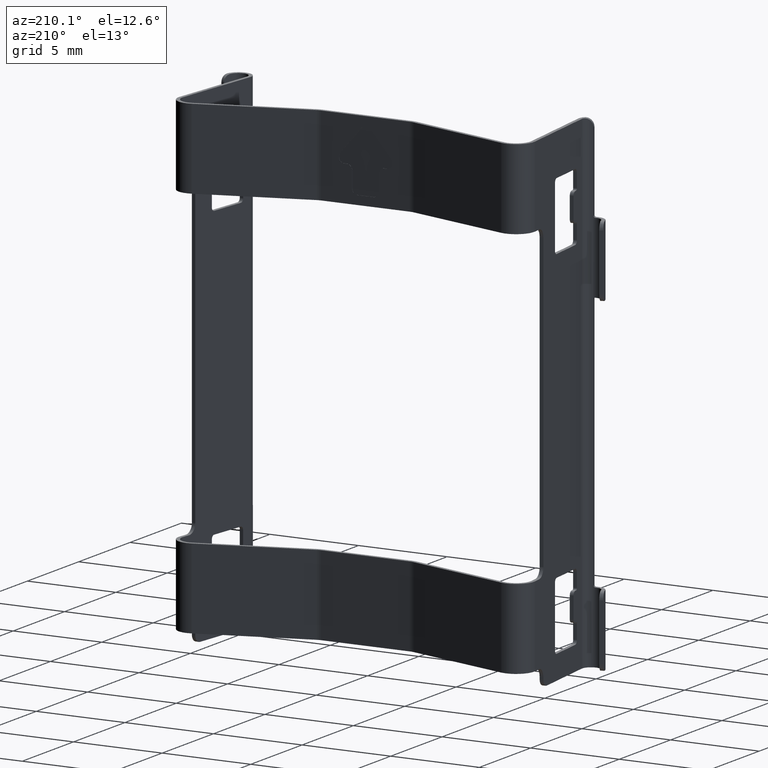
[diagram: clean part render]
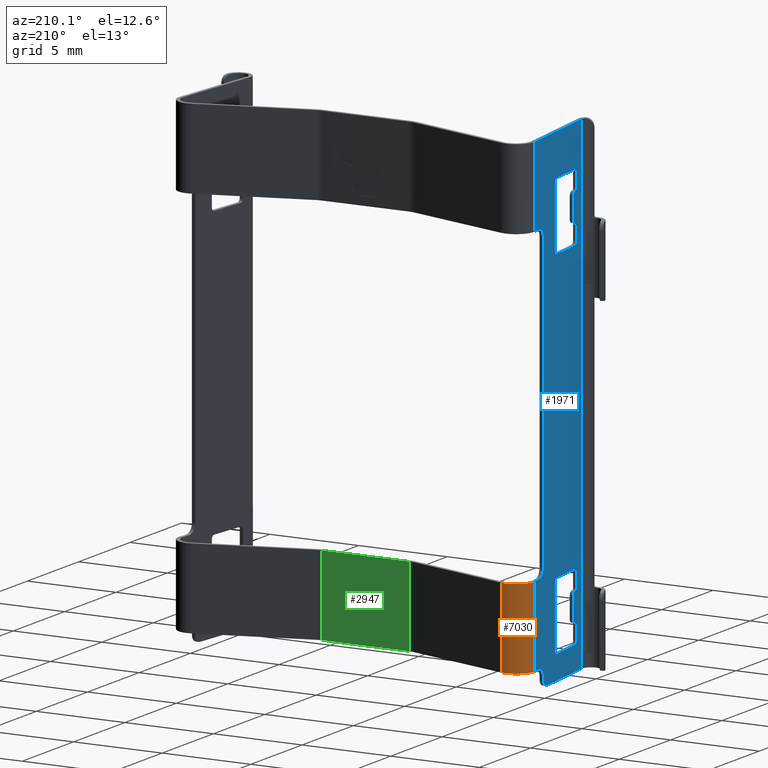
[diagram: same view with three faces highlighted in distinct colors, each labeled with its STEP entity id]
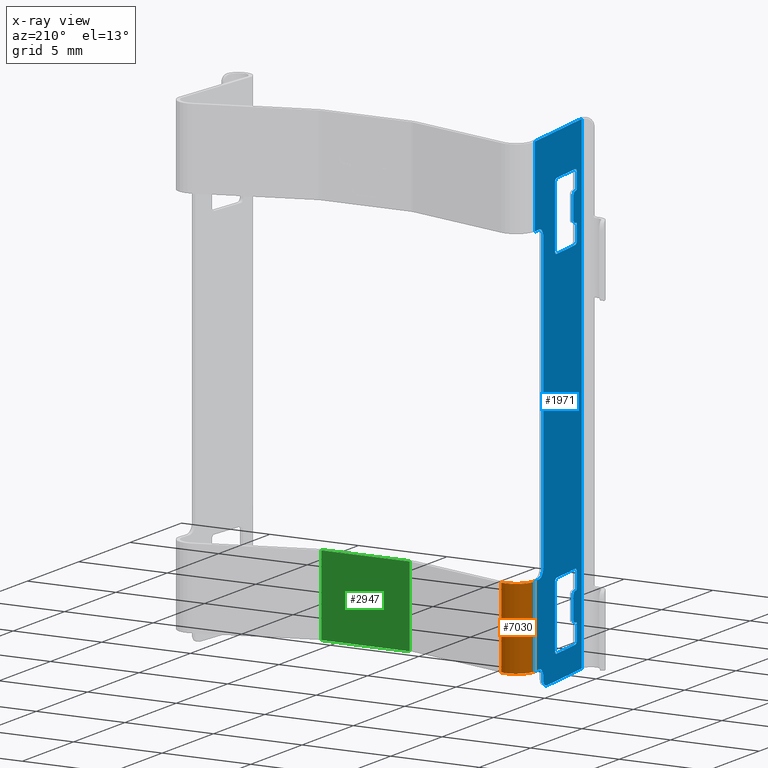
[diagram: x-ray of the same camera — body ghosted, the three highlighted faces saturated]
A machine part, auxiliary view with three faces highlighted in distinct colors.
The next image is the same camera in x-ray (body ghosted, the three faces saturated) — at least one of them is partly hidden behind the body in this view.
Their STEP definitions:

[orange] entity #7030 — the highlighted cylindrical surface (edge-blend (fillet) strip) has radius 1 mm, axis along (0, 0, 1).
#315 = CARTESIAN_POINT ( 'NONE',  ( -9.025000000008329692, 1.099999999455905986, -27.50000000000000000 ) ) ;
#327 = LINE ( 'NONE', #5213, #4170 ) ;
#435 = DIRECTION ( 'NONE',  ( 1.000000000000000000, 0.0000000000000000000, 0.0000000000000000000 ) ) ;
#462 = EDGE_LOOP ( 'NONE', ( #8077, #1681, #4314, #1976 ) ) ;
#1239 = DIRECTION ( 'NONE',  ( 0.0000000000000000000, 0.0000000000000000000, -1.000000000000000000 ) ) ;
#1681 = ORIENTED_EDGE ( 'NONE', *, *, #1715, .T. ) ;
#1715 = EDGE_CURVE ( 'NONE', #10631, #4213, #327, .T. ) ;
#1847 = CARTESIAN_POINT ( 'NONE',  ( -10.01981317973310048, 0.9982810855515210635, -22.00000000000000000 ) ) ;
#1976 = ORIENTED_EDGE ( 'NONE', *, *, #1982, .F. ) ;
#1982 = EDGE_CURVE ( 'NONE', #2747, #6828, #2173, .T. ) ;
#2173 = LINE ( 'NONE', #9080, #4026 ) ;
#2210 = CARTESIAN_POINT ( 'NONE',  ( -10.01981317973310048, 0.9982810855515210635, -26.50000000000000000 ) ) ;
#2699 = CYLINDRICAL_SURFACE ( 'NONE', #4912, 0.9999999999999991118 ) ;
#2747 = VERTEX_POINT ( 'NONE', #5402 ) ;
#3188 = DIRECTION ( 'NONE',  ( 0.0000000000000000000, 0.0000000000000000000, 1.000000000000000000 ) ) ;
#3218 = FACE_OUTER_BOUND ( 'NONE', #462, .T. ) ;
#4026 = VECTOR ( 'NONE', #3188, 1000.000000000000000 ) ;
#4170 = VECTOR ( 'NONE', #4471, 1000.000000000000000 ) ;
#4213 = VERTEX_POINT ( 'NONE', #1847 ) ;
#4314 = ORIENTED_EDGE ( 'NONE', *, *, #7561, .T. ) ;
#4444 = CIRCLE ( 'NONE', #9383, 0.9999999999999991118 ) ;
#4471 = DIRECTION ( 'NONE',  ( 0.0000000000000000000, 0.0000000000000000000, 1.000000000000000000 ) ) ;
#4912 = AXIS2_PLACEMENT_3D ( 'NONE', #315, #7149, #435 ) ;
#5057 = AXIS2_PLACEMENT_3D ( 'NONE', #5435, #1239, #10629 ) ;
#5213 = CARTESIAN_POINT ( 'NONE',  ( -10.01981317973310048, 0.9982810855515200643, -27.50000000000000000 ) ) ;
#5402 = CARTESIAN_POINT ( 'NONE',  ( -8.734473304504179580, 2.056866886331734978, -26.50000000000000000 ) ) ;
#5435 = CARTESIAN_POINT ( 'NONE',  ( -9.025000000008329692, 1.099999999455905986, -22.00000000000000000 ) ) ;
#6134 = CARTESIAN_POINT ( 'NONE',  ( -8.734473304504179580, 2.056866886331734978, -22.00000000000000000 ) ) ;
#6698 = DIRECTION ( 'NONE',  ( 1.000000000000000000, 0.0000000000000000000, 0.0000000000000000000 ) ) ;
#6828 = VERTEX_POINT ( 'NONE', #6134 ) ;
#7002 = CIRCLE ( 'NONE', #5057, 0.9999999999999991118 ) ;
#7030 = ADVANCED_FACE ( 'NONE', ( #3218 ), #2699, .T. ) ;
#7149 = DIRECTION ( 'NONE',  ( 0.0000000000000000000, 0.0000000000000000000, 1.000000000000000000 ) ) ;
#7386 = EDGE_CURVE ( 'NONE', #10631, #2747, #4444, .T. ) ;
#7561 = EDGE_CURVE ( 'NONE', #4213, #6828, #7002, .T. ) ;
#8077 = ORIENTED_EDGE ( 'NONE', *, *, #7386, .F. ) ;
#9080 = CARTESIAN_POINT ( 'NONE',  ( -8.734473304504179580, 2.056866886331734978, -27.50000000000000000 ) ) ;
#9383 = AXIS2_PLACEMENT_3D ( 'NONE', #10936, #10198, #6698 ) ;
#10198 = DIRECTION ( 'NONE',  ( 0.0000000000000000000, 0.0000000000000000000, -1.000000000000000000 ) ) ;
#10629 = DIRECTION ( 'NONE',  ( 1.000000000000000000, 0.0000000000000000000, 0.0000000000000000000 ) ) ;
#10631 = VERTEX_POINT ( 'NONE', #2210 ) ;
#10936 = CARTESIAN_POINT ( 'NONE',  ( -9.025000000008329692, 1.099999999455905986, -26.50000000000000000 ) ) ;

[blue] entity #1971 — the highlighted planar face has unit normal (-0.9948, -0.1017, 0).
#8 = AXIS2_PLACEMENT_3D ( 'NONE', #5692, #3154, #1520 ) ;
#68 = VERTEX_POINT ( 'NONE', #10495 ) ;
#76 = ORIENTED_EDGE ( 'NONE', *, *, #6745, .T. ) ;
#106 = VERTEX_POINT ( 'NONE', #9983 ) ;
#113 = EDGE_CURVE ( 'NONE', #3798, #8323, #6130, .T. ) ;
#147 = CARTESIAN_POINT ( 'NONE',  ( -10.17270023281965940, 2.493519774029495206, -26.50000000000000000 ) ) ;
#182 = CIRCLE ( 'NONE', #1887, 0.2000000000000002331 ) ;
#189 = ORIENTED_EDGE ( 'NONE', *, *, #4750, .F. ) ;
#192 = DIRECTION ( 'NONE',  ( 0.9948131797247722341, 0.1017189139043870316, 2.927413515468605853E-30 ) ) ;
#221 = ORIENTED_EDGE ( 'NONE', *, *, #7486, .T. ) ;
#226 = VECTOR ( 'NONE', #4983, 1000.000000000000114 ) ;
#227 = ORIENTED_EDGE ( 'NONE', *, *, #10497, .T. ) ;
#239 = CARTESIAN_POINT ( 'NONE',  ( -9.532118734268060223, -3.771381147405845180, -23.65000000000000213 ) ) ;
#263 = CARTESIAN_POINT ( 'NONE',  ( -9.511774951487179663, -3.970343783350804845, -22.55000000000000071 ) ) ;
#270 = DIRECTION ( 'NONE',  ( 0.1017189139043860185, -0.9948131797247722341, 0.0000000000000000000 ) ) ;
#285 = AXIS2_PLACEMENT_3D ( 'NONE', #6759, #6725, #2521 ) ;
#327 = LINE ( 'NONE', #5213, #4170 ) ;
#393 = DIRECTION ( 'NONE',  ( 0.9948131797247722341, 0.1017189139043868235, 0.0000000000000000000 ) ) ;
#451 = VECTOR ( 'NONE', #6370, 1000.000000000000000 ) ;
#534 = CARTESIAN_POINT ( 'NONE',  ( -9.755900344857700190, -1.582792152011350151, -22.55000000000000071 ) ) ;
#540 = DIRECTION ( 'NONE',  ( -0.1017189139043866153, 0.9948131797247722341, 0.0000000000000000000 ) ) ;
#544 = CARTESIAN_POINT ( 'NONE',  ( -9.552462517048928348, -3.572418511460889956, -24.85000000000000142 ) ) ;
#559 = ORIENTED_EDGE ( 'NONE', *, *, #1304, .T. ) ;
#563 = VERTEX_POINT ( 'NONE', #1273 ) ;
#567 = CARTESIAN_POINT ( 'NONE',  ( -9.532118734268060223, -3.771381147405845180, -3.449999999999999734 ) ) ;
#568 = LINE ( 'NONE', #3156, #7454 ) ;
#588 = VERTEX_POINT ( 'NONE', #4616 ) ;
#648 = CARTESIAN_POINT ( 'NONE',  ( -9.511774951487179663, -3.970343783350804845, -23.34999999999999787 ) ) ;
#655 = DIRECTION ( 'NONE',  ( 0.1017189139043868651, -0.9948131797247723451, 0.0000000000000000000 ) ) ;
#673 = DIRECTION ( 'NONE',  ( 0.1017189139043867124, -0.9948131797247723451, 1.301042606982603743E-14 ) ) ;
#682 = PLANE ( 'NONE',  #7452 ) ;
#685 = AXIS2_PLACEMENT_3D ( 'NONE', #2505, #838, #2535 ) ;
#757 = DIRECTION ( 'NONE',  ( 0.0000000000000000000, 0.0000000000000000000, 1.000000000000000000 ) ) ;
#787 = DIRECTION ( 'NONE',  ( -0.9948131797247722341, -0.1017189139043870316, 0.0000000000000000000 ) ) ;
#805 = DIRECTION ( 'NONE',  ( 0.0000000000000000000, 0.0000000000000000000, 1.000000000000000000 ) ) ;
#813 = CARTESIAN_POINT ( 'NONE',  ( -9.532118734268060223, -3.771381147405850065, -25.94999999999999929 ) ) ;
#838 = DIRECTION ( 'NONE',  ( 0.9948131797247722341, 0.1017189139043870316, 0.0000000000000000000 ) ) ;
#848 = CARTESIAN_POINT ( 'NONE',  ( -9.511774951487179663, -3.970343783350804845, -25.14999999999999858 ) ) ;
#857 = CARTESIAN_POINT ( 'NONE',  ( -10.01981317973310048, 0.9982810855515200643, -27.50000000000000000 ) ) ;
#866 = LINE ( 'NONE', #147, #5887 ) ;
#898 = CIRCLE ( 'NONE', #9099, 0.09999999999999990841 ) ;
#943 = CARTESIAN_POINT ( 'NONE',  ( -9.521946842877619943, -3.870862465378330342, -3.350000000000000089 ) ) ;
#953 = EDGE_CURVE ( 'NONE', #5083, #106, #2885, .T. ) ;
#1021 = CARTESIAN_POINT ( 'NONE',  ( -9.511774951487179663, -3.970343783350804845, -26.14999999999999858 ) ) ;
#1033 = VERTEX_POINT ( 'NONE', #8623 ) ;
#1074 = CARTESIAN_POINT ( 'NONE',  ( -9.511774951487179663, -3.970343783350804845, -5.150000000000000355 ) ) ;
#1117 = FACE_OUTER_BOUND ( 'NONE', #5951, .T. ) ;
#1158 = ORIENTED_EDGE ( 'NONE', *, *, #1679, .T. ) ;
#1170 = VECTOR ( 'NONE', #2846, 1000.000000000000000 ) ;
#1176 = CARTESIAN_POINT ( 'NONE',  ( -10.17270023281965940, 2.493519774029495206, -4.500000000000000000 ) ) ;
#1185 = EDGE_CURVE ( 'NONE', #4886, #9548, #2084, .T. ) ;
#1233 = LINE ( 'NONE', #10255, #5453 ) ;
#1273 = CARTESIAN_POINT ( 'NONE',  ( -9.755900344857709072, -1.582792152011350151, -6.150000000000000355 ) ) ;
#1275 = CARTESIAN_POINT ( 'NONE',  ( -9.876389511127920073, -0.4044054978604129658, -27.50000000000000000 ) ) ;
#1304 = EDGE_CURVE ( 'NONE', #3973, #4812, #3130, .T. ) ;
#1391 = VERTEX_POINT ( 'NONE', #2468 ) ;
#1396 = DIRECTION ( 'NONE',  ( 0.9948131797247722341, 0.1017189139043870316, 0.0000000000000000000 ) ) ;
#1418 = VERTEX_POINT ( 'NONE', #263 ) ;
#1421 = DIRECTION ( 'NONE',  ( 0.9948131797247722341, 0.1017189139043868235, 0.0000000000000000000 ) ) ;
#1455 = ORIENTED_EDGE ( 'NONE', *, *, #3141, .F. ) ;
#1457 = CARTESIAN_POINT ( 'NONE',  ( -10.01981317973310048, 0.9982810855515200643, -27.50000000000000000 ) ) ;
#1482 = CIRCLE ( 'NONE', #8753, 0.3999999999999999112 ) ;
#1485 = VERTEX_POINT ( 'NONE', #4551 ) ;
#1503 = CIRCLE ( 'NONE', #4229, 0.2000000000000000111 ) ;
#1520 = DIRECTION ( 'NONE',  ( 0.1017189139043869345, -0.9948131797247721231, 0.0000000000000000000 ) ) ;
#1539 = DIRECTION ( 'NONE',  ( 0.0000000000000000000, 0.0000000000000000000, 1.000000000000000000 ) ) ;
#1553 = CARTESIAN_POINT ( 'NONE',  ( -9.511774951487179663, -3.970343783350804845, -6.150000000000000355 ) ) ;
#1600 = VERTEX_POINT ( 'NONE', #544 ) ;
#1645 = DIRECTION ( 'NONE',  ( 0.1017189139043867124, -0.9948131797247723451, 0.0000000000000000000 ) ) ;
#1657 = CARTESIAN_POINT ( 'NONE',  ( -9.532118734268060223, -3.771381147405845180, -24.85000000000000142 ) ) ;
#1679 = EDGE_CURVE ( 'NONE', #5671, #2598, #2945, .T. ) ;
#1708 = VERTEX_POINT ( 'NONE', #2728 ) ;
#1710 = ORIENTED_EDGE ( 'NONE', *, *, #8834, .F. ) ;
#1715 = EDGE_CURVE ( 'NONE', #10631, #4213, #327, .T. ) ;
#1727 = AXIS2_PLACEMENT_3D ( 'NONE', #6493, #1421, #10002 ) ;
#1747 = LINE ( 'NONE', #5764, #10515 ) ;
#1763 = ORIENTED_EDGE ( 'NONE', *, *, #10509, .F. ) ;
#1778 = DIRECTION ( 'NONE',  ( 0.9948131797247722341, 0.1017189139043870316, 0.0000000000000000000 ) ) ;
#1792 = LINE ( 'NONE', #7432, #6568 ) ;
#1847 = CARTESIAN_POINT ( 'NONE',  ( -10.01981317973310048, 0.9982810855515210635, -22.00000000000000000 ) ) ;
#1887 = AXIS2_PLACEMENT_3D ( 'NONE', #4864, #10843, #673 ) ;
#1945 = VERTEX_POINT ( 'NONE', #10662 ) ;
#1949 = VERTEX_POINT ( 'NONE', #1275 ) ;
#1971 = ADVANCED_FACE ( 'NONE', ( #1117, #10035, #3356 ), #682, .T. ) ;
#1991 = AXIS2_PLACEMENT_3D ( 'NONE', #8122, #2248, #5655 ) ;
#2012 = CARTESIAN_POINT ( 'NONE',  ( -9.457384649391340048, -4.502282115144370600, 0.0000000000000000000 ) ) ;
#2016 = CARTESIAN_POINT ( 'NONE',  ( -9.776244127638589632, -1.383829516066396037, -2.550000000000000266 ) ) ;
#2084 = LINE ( 'NONE', #10474, #1170 ) ;
#2090 = ORIENTED_EDGE ( 'NONE', *, *, #2936, .T. ) ;
#2138 = CARTESIAN_POINT ( 'NONE',  ( -10.17270023281965940, 2.493519774029495206, -22.00000000000000000 ) ) ;
#2143 = VECTOR ( 'NONE', #10659, 1000.000000000000227 ) ;
#2210 = CARTESIAN_POINT ( 'NONE',  ( -10.01981317973310048, 0.9982810855515210635, -26.50000000000000000 ) ) ;
#2248 = DIRECTION ( 'NONE',  ( 0.9948131797247722341, 0.1017189139043864210, 0.0000000000000000000 ) ) ;
#2260 = ORIENTED_EDGE ( 'NONE', *, *, #8360, .T. ) ;
#2273 = EDGE_CURVE ( 'NONE', #68, #1945, #8836, .T. ) ;
#2283 = VECTOR ( 'NONE', #3604, 1000.000000000000000 ) ;
#2285 = CIRCLE ( 'NONE', #5347, 0.2000000000000000111 ) ;
#2337 = LINE ( 'NONE', #6670, #5088 ) ;
#2380 = ORIENTED_EDGE ( 'NONE', *, *, #9667, .T. ) ;
#2423 = CARTESIAN_POINT ( 'NONE',  ( -9.452593409634431509, -4.549140543674909942, -27.50000000000000000 ) ) ;
#2468 = CARTESIAN_POINT ( 'NONE',  ( -9.521946842877619943, -3.870862465378330342, -3.449999999999999734 ) ) ;
#2491 = CARTESIAN_POINT ( 'NONE',  ( -9.755900344857709072, -1.582792152011350151, -2.350000000000000089 ) ) ;
#2492 = CIRCLE ( 'NONE', #8794, 0.1999999999999998168 ) ;
#2498 = VERTEX_POINT ( 'NONE', #8997 ) ;
#2502 = EDGE_CURVE ( 'NONE', #7397, #5671, #6409, .T. ) ;
#2505 = CARTESIAN_POINT ( 'NONE',  ( -9.532118734268060223, -3.771381147405850065, -22.55000000000000071 ) ) ;
#2507 = DIRECTION ( 'NONE',  ( 0.9948131797247722341, 0.1017189139043870316, 0.0000000000000000000 ) ) ;
#2521 = DIRECTION ( 'NONE',  ( 0.1017189139043869345, -0.9948131797247721231, 0.0000000000000000000 ) ) ;
#2535 = DIRECTION ( 'NONE',  ( 0.1017189139043867124, -0.9948131797247723451, 0.0000000000000000000 ) ) ;
#2550 = CARTESIAN_POINT ( 'NONE',  ( -9.454190345353763902, -4.533522477773600734, -2.579608855748004249E-05 ) ) ;
#2598 = VERTEX_POINT ( 'NONE', #3146 ) ;
#2599 = VERTEX_POINT ( 'NONE', #9106 ) ;
#2602 = DIRECTION ( 'NONE',  ( 0.1017189139043860185, -0.9948131797247722341, 0.0000000000000000000 ) ) ;
#2656 = VECTOR ( 'NONE', #6946, 1000.000000000000114 ) ;
#2728 = CARTESIAN_POINT ( 'NONE',  ( -9.552462517048928348, -3.572418511460889956, -3.649999999999999911 ) ) ;
#2743 = CARTESIAN_POINT ( 'NONE',  ( -9.521946842877619943, -3.870862465378325012, -5.049999999999999822 ) ) ;
#2837 = ORIENTED_EDGE ( 'NONE', *, *, #7441, .T. ) ;
#2846 = DIRECTION ( 'NONE',  ( 0.0000000000000000000, 0.0000000000000000000, 1.000000000000000000 ) ) ;
#2868 = DIRECTION ( 'NONE',  ( 0.0000000000000000000, 0.0000000000000000000, 1.000000000000000000 ) ) ;
#2885 = LINE ( 'NONE', #7496, #226 ) ;
#2936 = EDGE_CURVE ( 'NONE', #2599, #9259, #9750, .T. ) ;
#2945 =( BOUNDED_CURVE ( )  B_SPLINE_CURVE ( 3, ( #6783, #2550, #10423, #2012 ),
 .UNSPECIFIED., .F., .T. ) 
 B_SPLINE_CURVE_WITH_KNOTS ( ( 4, 4 ),
 ( 1.553202206678764963, 1.570796326794899889 ),
 .UNSPECIFIED. ) 
 CURVE ( )  GEOMETRIC_REPRESENTATION_ITEM ( )  RATIONAL_B_SPLINE_CURVE ( ( 1.000000000000000000, 0.9999742040778040186, 0.9999742040778040186, 1.000000000000000000 ) ) 
 REPRESENTATION_ITEM ( '' )  );
#2948 = CIRCLE ( 'NONE', #3171, 0.09999999999999990841 ) ;
#2971 = DIRECTION ( 'NONE',  ( 0.1017189139043869345, -0.9948131797247721231, 0.0000000000000000000 ) ) ;
#3052 = ORIENTED_EDGE ( 'NONE', *, *, #7457, .T. ) ;
#3074 = VECTOR ( 'NONE', #5276, 1000.000000000000000 ) ;
#3111 = VERTEX_POINT ( 'NONE', #10301 ) ;
#3118 = DIRECTION ( 'NONE',  ( -0.9948131797247722341, -0.1017189139043866153, 0.0000000000000000000 ) ) ;
#3130 = LINE ( 'NONE', #9258, #4036 ) ;
#3141 = EDGE_CURVE ( 'NONE', #7623, #588, #5861, .T. ) ;
#3146 = CARTESIAN_POINT ( 'NONE',  ( -9.457384649391340048, -4.502282115144370600, 0.0000000000000000000 ) ) ;
#3154 = DIRECTION ( 'NONE',  ( -0.9948131797247722341, -0.1017189139043866292, 0.0000000000000000000 ) ) ;
#3156 = CARTESIAN_POINT ( 'NONE',  ( -9.511774951487179663, -3.970343783350804845, -26.14999999999999858 ) ) ;
#3171 = AXIS2_PLACEMENT_3D ( 'NONE', #10671, #5436, #2971 ) ;
#3191 = ORIENTED_EDGE ( 'NONE', *, *, #6187, .T. ) ;
#3199 = EDGE_CURVE ( 'NONE', #6031, #1708, #6260, .T. ) ;
#3311 = CIRCLE ( 'NONE', #8, 0.1999999999999998168 ) ;
#3315 = EDGE_CURVE ( 'NONE', #4213, #2498, #4385, .T. ) ;
#3352 = CARTESIAN_POINT ( 'NONE',  ( -9.967936533641870156, 0.4909263638918809902, -27.00000000000000000 ) ) ;
#3356 = FACE_BOUND ( 'NONE', #8931, .T. ) ;
#3365 = EDGE_CURVE ( 'NONE', #7557, #2498, #9739, .T. ) ;
#3385 = AXIS2_PLACEMENT_3D ( 'NONE', #4853, #1396, #8146 ) ;
#3440 = EDGE_CURVE ( 'NONE', #4925, #1418, #568, .T. ) ;
#3563 = EDGE_CURVE ( 'NONE', #6031, #1485, #9599, .T. ) ;
#3604 = DIRECTION ( 'NONE',  ( 0.0000000000000000000, 0.0000000000000000000, 1.000000000000000000 ) ) ;
#3610 = CARTESIAN_POINT ( 'NONE',  ( -9.532118734268060223, -3.771381147405850065, -2.350000000000000089 ) ) ;
#3620 = ORIENTED_EDGE ( 'NONE', *, *, #1715, .F. ) ;
#3705 = VECTOR ( 'NONE', #4804, 1000.000000000000000 ) ;
#3795 = ORIENTED_EDGE ( 'NONE', *, *, #2273, .T. ) ;
#3798 = VERTEX_POINT ( 'NONE', #4747 ) ;
#3834 = EDGE_CURVE ( 'NONE', #8661, #10720, #5864, .T. ) ;
#3874 = ORIENTED_EDGE ( 'NONE', *, *, #4494, .F. ) ;
#3948 = DIRECTION ( 'NONE',  ( -0.1017189139043870316, 0.9948131797247721231, 0.0000000000000000000 ) ) ;
#3973 = VERTEX_POINT ( 'NONE', #2491 ) ;
#4036 = VECTOR ( 'NONE', #5855, 1000.000000000000114 ) ;
#4047 = LINE ( 'NONE', #10091, #6991 ) ;
#4088 = CIRCLE ( 'NONE', #8683, 0.09999999999999990841 ) ;
#4102 = CIRCLE ( 'NONE', #10657, 0.4999999999999998335 ) ;
#4145 = VERTEX_POINT ( 'NONE', #6866 ) ;
#4170 = VECTOR ( 'NONE', #4471, 1000.000000000000000 ) ;
#4178 = DIRECTION ( 'NONE',  ( 0.1017189139043868651, -0.9948131797247722341, 0.0000000000000000000 ) ) ;
#4196 = ORIENTED_EDGE ( 'NONE', *, *, #5912, .T. ) ;
#4207 = VERTEX_POINT ( 'NONE', #1074 ) ;
#4213 = VERTEX_POINT ( 'NONE', #1847 ) ;
#4220 = ORIENTED_EDGE ( 'NONE', *, *, #6292, .T. ) ;
#4229 = AXIS2_PLACEMENT_3D ( 'NONE', #9755, #393, #10600 ) ;
#4259 = LINE ( 'NONE', #9994, #5989 ) ;
#4385 = LINE ( 'NONE', #2138, #2143 ) ;
#4416 = CARTESIAN_POINT ( 'NONE',  ( -9.511774951487179663, -3.970343783350804845, -6.150000000000000355 ) ) ;
#4467 = CARTESIAN_POINT ( 'NONE',  ( -9.552462517048928348, -3.572418511460889956, -5.049999999999999822 ) ) ;
#4471 = DIRECTION ( 'NONE',  ( 0.0000000000000000000, 0.0000000000000000000, 1.000000000000000000 ) ) ;
#4494 = EDGE_CURVE ( 'NONE', #1600, #6065, #4047, .T. ) ;
#4504 = DIRECTION ( 'NONE',  ( 0.1017189139043866292, -0.9948131797247722341, 0.0000000000000000000 ) ) ;
#4541 = LINE ( 'NONE', #7388, #6706 ) ;
#4551 = CARTESIAN_POINT ( 'NONE',  ( -9.532118734268060223, -3.771381147405845180, -5.049999999999999822 ) ) ;
#4576 = LINE ( 'NONE', #9569, #10448 ) ;
#4616 = CARTESIAN_POINT ( 'NONE',  ( -9.511774951487179663, -3.970343783350804845, -2.550000000000000266 ) ) ;
#4711 = AXIS2_PLACEMENT_3D ( 'NONE', #1657, #787, #8421 ) ;
#4739 = EDGE_CURVE ( 'NONE', #5513, #7060, #8732, .T. ) ;
#4747 = CARTESIAN_POINT ( 'NONE',  ( -9.511774951487179663, -3.970343783350804845, -5.950000000000000178 ) ) ;
#4750 = EDGE_CURVE ( 'NONE', #6442, #2598, #4576, .T. ) ;
#4775 = CARTESIAN_POINT ( 'NONE',  ( -9.532118734268060223, -3.771381147405850065, -22.34999999999999787 ) ) ;
#4804 = DIRECTION ( 'NONE',  ( 0.1017189139043866292, -0.9948131797247722341, 0.0000000000000000000 ) ) ;
#4812 = VERTEX_POINT ( 'NONE', #3610 ) ;
#4820 = ORIENTED_EDGE ( 'NONE', *, *, #1185, .T. ) ;
#4853 = CARTESIAN_POINT ( 'NONE',  ( -9.532118734268060223, -3.771381147405850065, -5.950000000000000178 ) ) ;
#4864 = CARTESIAN_POINT ( 'NONE',  ( -9.532118734268060223, -3.771381147405850065, -2.550000000000000266 ) ) ;
#4886 = VERTEX_POINT ( 'NONE', #7410 ) ;
#4925 = VERTEX_POINT ( 'NONE', #648 ) ;
#4943 = CARTESIAN_POINT ( 'NONE',  ( -9.521946842877619943, -3.870862465378330342, -23.34999999999999787 ) ) ;
#4959 = ORIENTED_EDGE ( 'NONE', *, *, #3834, .T. ) ;
#4983 = DIRECTION ( 'NONE',  ( -0.1017189139043870316, 0.9948131797247721231, 0.0000000000000000000 ) ) ;
#5006 = ORIENTED_EDGE ( 'NONE', *, *, #7841, .F. ) ;
#5073 = EDGE_CURVE ( 'NONE', #7893, #1485, #2337, .T. ) ;
#5080 = LINE ( 'NONE', #1176, #7654 ) ;
#5083 = VERTEX_POINT ( 'NONE', #5945 ) ;
#5088 = VECTOR ( 'NONE', #8389, 1000.000000000000114 ) ;
#5130 = DIRECTION ( 'NONE',  ( 0.0000000000000000000, 0.0000000000000000000, 1.000000000000000000 ) ) ;
#5213 = CARTESIAN_POINT ( 'NONE',  ( -10.01981317973310048, 0.9982810855515200643, -27.50000000000000000 ) ) ;
#5276 = DIRECTION ( 'NONE',  ( 0.0000000000000000000, 0.0000000000000000000, 1.000000000000000000 ) ) ;
#5300 = ORIENTED_EDGE ( 'NONE', *, *, #8954, .F. ) ;
#5347 = AXIS2_PLACEMENT_3D ( 'NONE', #9976, #8806, #7190 ) ;
#5395 = ORIENTED_EDGE ( 'NONE', *, *, #6504, .T. ) ;
#5436 = DIRECTION ( 'NONE',  ( 0.9948131797247722341, 0.1017189139043864210, 0.0000000000000000000 ) ) ;
#5453 = VECTOR ( 'NONE', #5130, 1000.000000000000000 ) ;
#5510 = CIRCLE ( 'NONE', #9945, 0.2000000000000000111 ) ;
#5513 = VERTEX_POINT ( 'NONE', #5608 ) ;
#5552 = CARTESIAN_POINT ( 'NONE',  ( -9.917077076689681192, -0.006480225970504790295, -21.50000000000000000 ) ) ;
#5564 = ORIENTED_EDGE ( 'NONE', *, *, #6730, .T. ) ;
#5578 = ORIENTED_EDGE ( 'NONE', *, *, #9470, .T. ) ;
#5589 = CARTESIAN_POINT ( 'NONE',  ( -9.532118734268060223, -3.771381147405850065, -6.150000000000000355 ) ) ;
#5608 = CARTESIAN_POINT ( 'NONE',  ( -9.776244127638589632, -1.383829516066396037, -5.950000000000000178 ) ) ;
#5655 = DIRECTION ( 'NONE',  ( 0.1017189139043869345, -0.9948131797247721231, 0.0000000000000000000 ) ) ;
#5668 = ORIENTED_EDGE ( 'NONE', *, *, #7328, .T. ) ;
#5671 = VERTEX_POINT ( 'NONE', #7570 ) ;
#5673 = CARTESIAN_POINT ( 'NONE',  ( -9.511774951487179663, -3.970343783350804845, -3.350000000000000089 ) ) ;
#5692 = CARTESIAN_POINT ( 'NONE',  ( -9.532118734268060223, -3.771381147405845180, -3.649999999999999911 ) ) ;
#5764 = CARTESIAN_POINT ( 'NONE',  ( -9.511774951487179663, -3.970343783350804845, -22.34999999999999787 ) ) ;
#5791 = ORIENTED_EDGE ( 'NONE', *, *, #6792, .F. ) ;
#5851 = ORIENTED_EDGE ( 'NONE', *, *, #9552, .T. ) ;
#5855 = DIRECTION ( 'NONE',  ( 0.1017189139043870316, -0.9948131797247721231, 0.0000000000000000000 ) ) ;
#5861 = LINE ( 'NONE', #9638, #2283 ) ;
#5862 = VECTOR ( 'NONE', #805, 1000.000000000000000 ) ;
#5864 = CIRCLE ( 'NONE', #1991, 0.09999999999999990841 ) ;
#5870 = DIRECTION ( 'NONE',  ( 0.0000000000000000000, 0.0000000000000000000, 1.000000000000000000 ) ) ;
#5887 = VECTOR ( 'NONE', #2602, 1000.000000000000227 ) ;
#5905 = DIRECTION ( 'NONE',  ( 0.0000000000000000000, 0.0000000000000000000, 1.000000000000000000 ) ) ;
#5912 = EDGE_CURVE ( 'NONE', #7679, #68, #5080, .T. ) ;
#5921 = ORIENTED_EDGE ( 'NONE', *, *, #2502, .T. ) ;
#5945 = CARTESIAN_POINT ( 'NONE',  ( -9.521946842877619943, -3.870862465378330342, -23.44999999999999929 ) ) ;
#5951 = EDGE_LOOP ( 'NONE', ( #5921, #1158, #189, #5006, #4196, #3795, #8161, #10564, #10419, #3620, #5395, #2380, #8605, #8710, #7789 ) ) ;
#5989 = VECTOR ( 'NONE', #6206, 1000.000000000000114 ) ;
#6004 = CARTESIAN_POINT ( 'NONE',  ( -9.917077076689681192, -0.006480225970504790295, -27.09999999999999787 ) ) ;
#6031 = VERTEX_POINT ( 'NONE', #8194 ) ;
#6065 = VERTEX_POINT ( 'NONE', #6503 ) ;
#6098 = ORIENTED_EDGE ( 'NONE', *, *, #3563, .T. ) ;
#6130 = CIRCLE ( 'NONE', #3385, 0.2000000000000002331 ) ;
#6138 = EDGE_CURVE ( 'NONE', #8485, #3111, #1792, .T. ) ;
#6186 = LINE ( 'NONE', #4416, #10199 ) ;
#6187 = EDGE_CURVE ( 'NONE', #10041, #1418, #9646, .T. ) ;
#6206 = DIRECTION ( 'NONE',  ( -0.1017189139043870316, 0.9948131797247721231, 0.0000000000000000000 ) ) ;
#6219 = CARTESIAN_POINT ( 'NONE',  ( -9.967936533641870156, 0.4909263638918809902, -5.000000000000000000 ) ) ;
#6260 = LINE ( 'NONE', #4467, #3074 ) ;
#6292 = EDGE_CURVE ( 'NONE', #1391, #8185, #4541, .T. ) ;
#6370 = DIRECTION ( 'NONE',  ( 0.0000000000000000000, 0.0000000000000000000, 1.000000000000000000 ) ) ;
#6409 = LINE ( 'NONE', #10686, #451 ) ;
#6427 = EDGE_LOOP ( 'NONE', ( #3874, #76, #1710, #4959, #5300, #2090, #1763, #2260, #4820, #2837, #5851, #3191, #7437, #3052, #7265, #5668 ) ) ;
#6442 = VERTEX_POINT ( 'NONE', #9420 ) ;
#6458 = DIRECTION ( 'NONE',  ( 0.1017189139043868373, -0.9948131797247723451, 0.0000000000000000000 ) ) ;
#6493 = CARTESIAN_POINT ( 'NONE',  ( -9.967936533641870156, 0.4909263638918819339, -21.50000000000000000 ) ) ;
#6503 = CARTESIAN_POINT ( 'NONE',  ( -9.552462517048928348, -3.572418511460889956, -23.65000000000000213 ) ) ;
#6504 = EDGE_CURVE ( 'NONE', #10631, #6639, #866, .T. ) ;
#6568 = VECTOR ( 'NONE', #1539, 1000.000000000000000 ) ;
#6576 = CARTESIAN_POINT ( 'NONE',  ( -9.521946842877619943, -3.870862465378325012, -25.05000000000000071 ) ) ;
#6579 = CARTESIAN_POINT ( 'NONE',  ( -9.511774951487179663, -3.970343783350804845, -26.14999999999999858 ) ) ;
#6615 = CARTESIAN_POINT ( 'NONE',  ( -10.01981317973310048, 0.9982810855515200643, -27.50000000000000000 ) ) ;
#6634 = DIRECTION ( 'NONE',  ( 0.9948131797247722341, 0.1017189139043868235, 0.0000000000000000000 ) ) ;
#6639 = VERTEX_POINT ( 'NONE', #8274 ) ;
#6670 = CARTESIAN_POINT ( 'NONE',  ( -9.511774951487179663, -3.970343783350799516, -5.049999999999999822 ) ) ;
#6706 = VECTOR ( 'NONE', #3948, 1000.000000000000114 ) ;
#6725 = DIRECTION ( 'NONE',  ( -0.9948131797247722341, -0.1017189139043870316, 0.0000000000000000000 ) ) ;
#6730 = EDGE_CURVE ( 'NONE', #4812, #588, #182, .T. ) ;
#6731 = VECTOR ( 'NONE', #2868, 1000.000000000000000 ) ;
#6745 = EDGE_CURVE ( 'NONE', #1600, #10481, #7762, .T. ) ;
#6759 = CARTESIAN_POINT ( 'NONE',  ( -9.532118734268060223, -3.771381147405845180, -4.850000000000000533 ) ) ;
#6783 = CARTESIAN_POINT ( 'NONE',  ( -9.452593409634431509, -4.549140543674909942, -7.738626937869859488E-05 ) ) ;
#6792 = EDGE_CURVE ( 'NONE', #3798, #4207, #8296, .T. ) ;
#6866 = CARTESIAN_POINT ( 'NONE',  ( -9.755900344857709072, -1.582792152011350151, -26.14999999999999858 ) ) ;
#6946 = DIRECTION ( 'NONE',  ( 0.1017189139043870316, -0.9948131797247721231, 0.0000000000000000000 ) ) ;
#6991 = VECTOR ( 'NONE', #5905, 1000.000000000000000 ) ;
#7060 = VERTEX_POINT ( 'NONE', #2016 ) ;
#7120 = ORIENTED_EDGE ( 'NONE', *, *, #4739, .T. ) ;
#7190 = DIRECTION ( 'NONE',  ( 0.1017189139043868373, -0.9948131797247723451, 0.0000000000000000000 ) ) ;
#7227 = VECTOR ( 'NONE', #7719, 1000.000000000000000 ) ;
#7230 = ORIENTED_EDGE ( 'NONE', *, *, #7508, .F. ) ;
#7265 = ORIENTED_EDGE ( 'NONE', *, *, #953, .T. ) ;
#7328 = EDGE_CURVE ( 'NONE', #106, #6065, #2492, .T. ) ;
#7388 = CARTESIAN_POINT ( 'NONE',  ( -9.511774951487179663, -3.970343783350799516, -3.449999999999999734 ) ) ;
#7394 = ORIENTED_EDGE ( 'NONE', *, *, #113, .T. ) ;
#7397 = VERTEX_POINT ( 'NONE', #2423 ) ;
#7410 = CARTESIAN_POINT ( 'NONE',  ( -9.776244127638589632, -1.383829516066396037, -25.94999999999999929 ) ) ;
#7432 = CARTESIAN_POINT ( 'NONE',  ( -9.917077076689681192, -0.006480225970504790295, -44.00000000000000000 ) ) ;
#7437 = ORIENTED_EDGE ( 'NONE', *, *, #3440, .F. ) ;
#7441 = EDGE_CURVE ( 'NONE', #9548, #1033, #5510, .T. ) ;
#7452 = AXIS2_PLACEMENT_3D ( 'NONE', #6615, #3118, #540 ) ;
#7454 = VECTOR ( 'NONE', #757, 1000.000000000000000 ) ;
#7457 = EDGE_CURVE ( 'NONE', #4925, #5083, #898, .T. ) ;
#7485 = VECTOR ( 'NONE', #5870, 1000.000000000000000 ) ;
#7486 = EDGE_CURVE ( 'NONE', #7060, #3973, #9543, .T. ) ;
#7492 = DIRECTION ( 'NONE',  ( 0.1017189139043870316, -0.9948131797247721231, 0.0000000000000000000 ) ) ;
#7496 = CARTESIAN_POINT ( 'NONE',  ( -9.511774951487179663, -3.970343783350799516, -23.44999999999999929 ) ) ;
#7508 = EDGE_CURVE ( 'NONE', #563, #8323, #6186, .T. ) ;
#7557 = VERTEX_POINT ( 'NONE', #5552 ) ;
#7570 = CARTESIAN_POINT ( 'NONE',  ( -9.452593409634431509, -4.549140543674909942, -7.738626937869859488E-05 ) ) ;
#7623 = VERTEX_POINT ( 'NONE', #5673 ) ;
#7624 = AXIS2_PLACEMENT_3D ( 'NONE', #6219, #9558, #9666 ) ;
#7654 = VECTOR ( 'NONE', #270, 1000.000000000000227 ) ;
#7679 = VERTEX_POINT ( 'NONE', #10045 ) ;
#7719 = DIRECTION ( 'NONE',  ( 0.0000000000000000000, 0.0000000000000000000, 1.000000000000000000 ) ) ;
#7762 = CIRCLE ( 'NONE', #4711, 0.1999999999999998168 ) ;
#7789 = ORIENTED_EDGE ( 'NONE', *, *, #8707, .T. ) ;
#7816 = CARTESIAN_POINT ( 'NONE',  ( -9.776244127638589632, -1.383829516066396037, -6.150000000000000355 ) ) ;
#7834 = CARTESIAN_POINT ( 'NONE',  ( -9.532118734268060223, -3.771381147405850065, -26.14999999999999858 ) ) ;
#7841 = EDGE_CURVE ( 'NONE', #7679, #6442, #9512, .T. ) ;
#7893 = VERTEX_POINT ( 'NONE', #2743 ) ;
#8122 = CARTESIAN_POINT ( 'NONE',  ( -9.521946842877619943, -3.870862465378325012, -25.14999999999999858 ) ) ;
#8146 = DIRECTION ( 'NONE',  ( 0.1017189139043867124, -0.9948131797247723451, 0.0000000000000000000 ) ) ;
#8161 = ORIENTED_EDGE ( 'NONE', *, *, #8455, .F. ) ;
#8185 = VERTEX_POINT ( 'NONE', #567 ) ;
#8194 = CARTESIAN_POINT ( 'NONE',  ( -9.552462517048928348, -3.572418511460889956, -4.850000000000000533 ) ) ;
#8274 = CARTESIAN_POINT ( 'NONE',  ( -9.967936533641870156, 0.4909263638918819339, -26.50000000000000000 ) ) ;
#8296 = LINE ( 'NONE', #1553, #7485 ) ;
#8323 = VERTEX_POINT ( 'NONE', #5589 ) ;
#8327 = EDGE_CURVE ( 'NONE', #7893, #4207, #2948, .T. ) ;
#8360 = EDGE_CURVE ( 'NONE', #4145, #4886, #1503, .T. ) ;
#8362 = CARTESIAN_POINT ( 'NONE',  ( -9.876389511127920073, -0.4044054978604129658, -27.09999999999999787 ) ) ;
#8370 = DIRECTION ( 'NONE',  ( 0.1017189139043869345, -0.9948131797247721231, -8.673617379884043361E-15 ) ) ;
#8389 = DIRECTION ( 'NONE',  ( -0.1017189139043870316, 0.9948131797247721231, 0.0000000000000000000 ) ) ;
#8421 = DIRECTION ( 'NONE',  ( 0.1017189139043869345, -0.9948131797247721231, 0.0000000000000000000 ) ) ;
#8455 = EDGE_CURVE ( 'NONE', #7557, #1945, #1233, .T. ) ;
#8485 = VERTEX_POINT ( 'NONE', #6004 ) ;
#8541 = DIRECTION ( 'NONE',  ( 0.1017189139043869345, -0.9948131797247721231, 0.0000000000000000000 ) ) ;
#8605 = ORIENTED_EDGE ( 'NONE', *, *, #6138, .F. ) ;
#8623 = CARTESIAN_POINT ( 'NONE',  ( -9.755900344857709072, -1.582792152011350151, -22.34999999999999787 ) ) ;
#8661 = VERTEX_POINT ( 'NONE', #6576 ) ;
#8683 = AXIS2_PLACEMENT_3D ( 'NONE', #943, #192, #8370 ) ;
#8707 = EDGE_CURVE ( 'NONE', #1949, #7397, #9874, .T. ) ;
#8710 = ORIENTED_EDGE ( 'NONE', *, *, #9561, .T. ) ;
#8732 = LINE ( 'NONE', #7816, #6731 ) ;
#8753 = AXIS2_PLACEMENT_3D ( 'NONE', #8362, #10074, #655 ) ;
#8758 = EDGE_CURVE ( 'NONE', #563, #5513, #2285, .T. ) ;
#8794 = AXIS2_PLACEMENT_3D ( 'NONE', #239, #9898, #8907 ) ;
#8806 = DIRECTION ( 'NONE',  ( 0.9948131797247722341, 0.1017189139043868235, 0.0000000000000000000 ) ) ;
#8834 = EDGE_CURVE ( 'NONE', #8661, #10481, #4259, .T. ) ;
#8836 = CIRCLE ( 'NONE', #7624, 0.4999999999999998335 ) ;
#8907 = DIRECTION ( 'NONE',  ( 0.1017189139043869345, -0.9948131797247721231, 0.0000000000000000000 ) ) ;
#8931 = EDGE_LOOP ( 'NONE', ( #10777, #6098, #9024, #10694, #5791, #7394, #7230, #10602, #7120, #221, #559, #5564, #1455, #227, #4220, #5578 ) ) ;
#8954 = EDGE_CURVE ( 'NONE', #2599, #10720, #10665, .T. ) ;
#8997 = CARTESIAN_POINT ( 'NONE',  ( -9.967936533641870156, 0.4909263638918819339, -22.00000000000000000 ) ) ;
#9024 = ORIENTED_EDGE ( 'NONE', *, *, #5073, .F. ) ;
#9099 = AXIS2_PLACEMENT_3D ( 'NONE', #4943, #1778, #8541 ) ;
#9106 = CARTESIAN_POINT ( 'NONE',  ( -9.511774951487179663, -3.970343783350804845, -25.94999999999999929 ) ) ;
#9258 = CARTESIAN_POINT ( 'NONE',  ( -9.511774951487179663, -3.970343783350804845, -2.350000000000000089 ) ) ;
#9259 = VERTEX_POINT ( 'NONE', #7834 ) ;
#9267 = AXIS2_PLACEMENT_3D ( 'NONE', #9588, #6634, #10065 ) ;
#9298 = AXIS2_PLACEMENT_3D ( 'NONE', #813, #2507, #1645 ) ;
#9320 = DIRECTION ( 'NONE',  ( 0.9948131797247722341, 0.1017189139043868235, 0.0000000000000000000 ) ) ;
#9420 = CARTESIAN_POINT ( 'NONE',  ( -10.01981317973310048, 0.9982810855515200643, 0.0000000000000000000 ) ) ;
#9452 = LINE ( 'NONE', #1021, #2656 ) ;
#9470 = EDGE_CURVE ( 'NONE', #8185, #1708, #3311, .T. ) ;
#9512 = LINE ( 'NONE', #857, #7227 ) ;
#9543 = CIRCLE ( 'NONE', #9267, 0.2000000000000000111 ) ;
#9548 = VERTEX_POINT ( 'NONE', #10886 ) ;
#9552 = EDGE_CURVE ( 'NONE', #1033, #10041, #1747, .T. ) ;
#9558 = DIRECTION ( 'NONE',  ( 0.9948131797247722341, 0.1017189139043868235, -3.944304526105055524E-31 ) ) ;
#9561 = EDGE_CURVE ( 'NONE', #8485, #1949, #1482, .T. ) ;
#9569 = CARTESIAN_POINT ( 'NONE',  ( -10.01981317973310048, 0.9982810855515200643, 0.0000000000000000000 ) ) ;
#9588 = CARTESIAN_POINT ( 'NONE',  ( -9.755900344857700190, -1.582792152011350151, -2.550000000000000266 ) ) ;
#9599 = CIRCLE ( 'NONE', #285, 0.1999999999999998168 ) ;
#9638 = CARTESIAN_POINT ( 'NONE',  ( -9.511774951487179663, -3.970343783350804845, -6.150000000000000355 ) ) ;
#9646 = CIRCLE ( 'NONE', #685, 0.2000000000000002331 ) ;
#9666 = DIRECTION ( 'NONE',  ( 0.1017189139043868651, -0.9948131797247722341, 1.734723475976807686E-15 ) ) ;
#9667 = EDGE_CURVE ( 'NONE', #6639, #3111, #4102, .T. ) ;
#9686 = CARTESIAN_POINT ( 'NONE',  ( -9.532118734268060223, -3.771381147405845180, -25.05000000000000071 ) ) ;
#9739 = CIRCLE ( 'NONE', #1727, 0.4999999999999998335 ) ;
#9750 = CIRCLE ( 'NONE', #9298, 0.2000000000000002331 ) ;
#9755 = CARTESIAN_POINT ( 'NONE',  ( -9.755900344857709072, -1.582792152011350151, -25.94999999999999929 ) ) ;
#9874 = LINE ( 'NONE', #1457, #3705 ) ;
#9898 = DIRECTION ( 'NONE',  ( -0.9948131797247722341, -0.1017189139043866292, 0.0000000000000000000 ) ) ;
#9931 = DIRECTION ( 'NONE',  ( 0.9948131797247722341, 0.1017189139043868235, 0.0000000000000000000 ) ) ;
#9945 = AXIS2_PLACEMENT_3D ( 'NONE', #534, #9931, #6458 ) ;
#9976 = CARTESIAN_POINT ( 'NONE',  ( -9.755900344857709072, -1.582792152011350151, -5.950000000000000178 ) ) ;
#9983 = CARTESIAN_POINT ( 'NONE',  ( -9.532118734268060223, -3.771381147405845180, -23.44999999999999929 ) ) ;
#9994 = CARTESIAN_POINT ( 'NONE',  ( -9.511774951487179663, -3.970343783350799516, -25.05000000000000071 ) ) ;
#10002 = DIRECTION ( 'NONE',  ( 0.1017189139043868651, -0.9948131797247722341, 0.0000000000000000000 ) ) ;
#10035 = FACE_BOUND ( 'NONE', #6427, .T. ) ;
#10041 = VERTEX_POINT ( 'NONE', #4775 ) ;
#10045 = CARTESIAN_POINT ( 'NONE',  ( -10.01981317973310048, 0.9982810855515210635, -4.500000000000000000 ) ) ;
#10065 = DIRECTION ( 'NONE',  ( 0.1017189139043868373, -0.9948131797247723451, 0.0000000000000000000 ) ) ;
#10074 = DIRECTION ( 'NONE',  ( -0.9948131797247722341, -0.1017189139043868235, 0.0000000000000000000 ) ) ;
#10091 = CARTESIAN_POINT ( 'NONE',  ( -9.552462517048928348, -3.572418511460889956, -25.05000000000000071 ) ) ;
#10199 = VECTOR ( 'NONE', #10492, 1000.000000000000114 ) ;
#10255 = CARTESIAN_POINT ( 'NONE',  ( -9.917077076689681192, -0.006480225970504790295, -22.00000000000000000 ) ) ;
#10301 = CARTESIAN_POINT ( 'NONE',  ( -9.917077076689681192, -0.006480225970504790295, -27.00000000000000000 ) ) ;
#10419 = ORIENTED_EDGE ( 'NONE', *, *, #3315, .F. ) ;
#10423 = CARTESIAN_POINT ( 'NONE',  ( -9.455787466471946345, -4.517902598667562941, 1.141007548345784393E-16 ) ) ;
#10448 = VECTOR ( 'NONE', #4504, 1000.000000000000000 ) ;
#10474 = CARTESIAN_POINT ( 'NONE',  ( -9.776244127638589632, -1.383829516066396037, -26.14999999999999858 ) ) ;
#10481 = VERTEX_POINT ( 'NONE', #9686 ) ;
#10492 = DIRECTION ( 'NONE',  ( 0.1017189139043870316, -0.9948131797247721231, 0.0000000000000000000 ) ) ;
#10495 = CARTESIAN_POINT ( 'NONE',  ( -9.967936533641870156, 0.4909263638918819339, -4.500000000000000000 ) ) ;
#10497 = EDGE_CURVE ( 'NONE', #7623, #1391, #4088, .T. ) ;
#10509 = EDGE_CURVE ( 'NONE', #4145, #9259, #9452, .T. ) ;
#10515 = VECTOR ( 'NONE', #7492, 1000.000000000000114 ) ;
#10564 = ORIENTED_EDGE ( 'NONE', *, *, #3365, .T. ) ;
#10600 = DIRECTION ( 'NONE',  ( 0.1017189139043868373, -0.9948131797247723451, 0.0000000000000000000 ) ) ;
#10602 = ORIENTED_EDGE ( 'NONE', *, *, #8758, .T. ) ;
#10631 = VERTEX_POINT ( 'NONE', #2210 ) ;
#10657 = AXIS2_PLACEMENT_3D ( 'NONE', #3352, #9320, #4178 ) ;
#10659 = DIRECTION ( 'NONE',  ( 0.1017189139043860185, -0.9948131797247722341, 0.0000000000000000000 ) ) ;
#10662 = CARTESIAN_POINT ( 'NONE',  ( -9.917077076689681192, -0.006480225970504790295, -5.000000000000000000 ) ) ;
#10665 = LINE ( 'NONE', #6579, #5862 ) ;
#10671 = CARTESIAN_POINT ( 'NONE',  ( -9.521946842877619943, -3.870862465378325012, -5.150000000000000355 ) ) ;
#10686 = CARTESIAN_POINT ( 'NONE',  ( -9.452593409634431509, -4.549140543674909942, -27.50000000000000000 ) ) ;
#10694 = ORIENTED_EDGE ( 'NONE', *, *, #8327, .T. ) ;
#10720 = VERTEX_POINT ( 'NONE', #848 ) ;
#10777 = ORIENTED_EDGE ( 'NONE', *, *, #3199, .F. ) ;
#10843 = DIRECTION ( 'NONE',  ( 0.9948131797247722341, 0.1017189139043870316, -4.468157470978395587E-30 ) ) ;
#10886 = CARTESIAN_POINT ( 'NONE',  ( -9.776244127638589632, -1.383829516066396037, -22.55000000000000071 ) ) ;

[green] entity #2947 — the highlighted planar face has unit normal (-0, 1, 0).
#42 = LINE ( 'NONE', #5351, #10523 ) ;
#102 = CARTESIAN_POINT ( 'NONE',  ( -2.500000000000000000, 0.2000000000000000111, -22.00000000000000000 ) ) ;
#174 = CARTESIAN_POINT ( 'NONE',  ( 2.500000000000000000, 0.2000000000000000111, -27.50000000000000000 ) ) ;
#541 = EDGE_CURVE ( 'NONE', #5389, #4800, #42, .T. ) ;
#1350 = LINE ( 'NONE', #5956, #2685 ) ;
#2135 = LINE ( 'NONE', #5003, #10010 ) ;
#2405 = EDGE_LOOP ( 'NONE', ( #8495, #10222, #10728, #4658 ) ) ;
#2685 = VECTOR ( 'NONE', #7580, 1000.000000000000000 ) ;
#2947 = ADVANCED_FACE ( 'NONE', ( #3342 ), #4043, .T. ) ;
#3342 = FACE_OUTER_BOUND ( 'NONE', #2405, .T. ) ;
#3541 = EDGE_CURVE ( 'NONE', #8057, #5389, #1350, .T. ) ;
#4043 = PLANE ( 'NONE',  #9134 ) ;
#4067 = EDGE_CURVE ( 'NONE', #8057, #6823, #2135, .T. ) ;
#4152 = EDGE_CURVE ( 'NONE', #6823, #4800, #6394, .T. ) ;
#4153 = CARTESIAN_POINT ( 'NONE',  ( -2.500000000000000000, 0.2000000000000000111, -27.50000000000000000 ) ) ;
#4658 = ORIENTED_EDGE ( 'NONE', *, *, #4152, .F. ) ;
#4800 = VERTEX_POINT ( 'NONE', #5281 ) ;
#5003 = CARTESIAN_POINT ( 'NONE',  ( -2.500000000000000000, 0.2000000000000000111, -26.50000000000000000 ) ) ;
#5281 = CARTESIAN_POINT ( 'NONE',  ( 2.500000000000000000, 0.2000000000000000111, -22.00000000000000000 ) ) ;
#5351 = CARTESIAN_POINT ( 'NONE',  ( -2.500000000000000000, 0.2000000000000000111, -22.00000000000000000 ) ) ;
#5389 = VERTEX_POINT ( 'NONE', #102 ) ;
#5956 = CARTESIAN_POINT ( 'NONE',  ( -2.500000000000000000, 0.2000000000000000111, -27.50000000000000000 ) ) ;
#6227 = DIRECTION ( 'NONE',  ( 1.000000000000000000, 0.0000000000000000000, 0.0000000000000000000 ) ) ;
#6394 = LINE ( 'NONE', #174, #8129 ) ;
#6823 = VERTEX_POINT ( 'NONE', #10427 ) ;
#7580 = DIRECTION ( 'NONE',  ( 0.0000000000000000000, 0.0000000000000000000, 1.000000000000000000 ) ) ;
#7595 = DIRECTION ( 'NONE',  ( 1.000000000000000000, 0.0000000000000000000, 0.0000000000000000000 ) ) ;
#7610 = DIRECTION ( 'NONE',  ( 1.000000000000000000, 0.0000000000000000000, 0.0000000000000000000 ) ) ;
#8057 = VERTEX_POINT ( 'NONE', #9334 ) ;
#8129 = VECTOR ( 'NONE', #9510, 1000.000000000000000 ) ;
#8495 = ORIENTED_EDGE ( 'NONE', *, *, #4067, .F. ) ;
#9134 = AXIS2_PLACEMENT_3D ( 'NONE', #4153, #10159, #7595 ) ;
#9334 = CARTESIAN_POINT ( 'NONE',  ( -2.500000000000000000, 0.2000000000000000111, -26.50000000000000000 ) ) ;
#9510 = DIRECTION ( 'NONE',  ( 0.0000000000000000000, 0.0000000000000000000, 1.000000000000000000 ) ) ;
#10010 = VECTOR ( 'NONE', #7610, 1000.000000000000000 ) ;
#10159 = DIRECTION ( 'NONE',  ( -0.0000000000000000000, 1.000000000000000000, 0.0000000000000000000 ) ) ;
#10222 = ORIENTED_EDGE ( 'NONE', *, *, #3541, .T. ) ;
#10427 = CARTESIAN_POINT ( 'NONE',  ( 2.500000000000000000, 0.2000000000000000111, -26.50000000000000000 ) ) ;
#10523 = VECTOR ( 'NONE', #6227, 1000.000000000000000 ) ;
#10728 = ORIENTED_EDGE ( 'NONE', *, *, #541, .T. ) ;